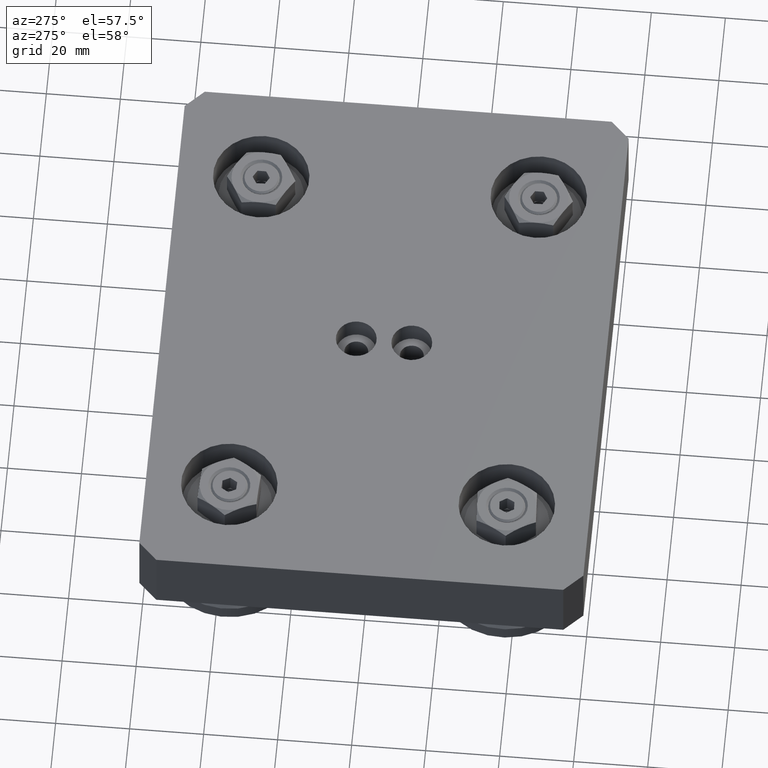
[diagram: clean part render]
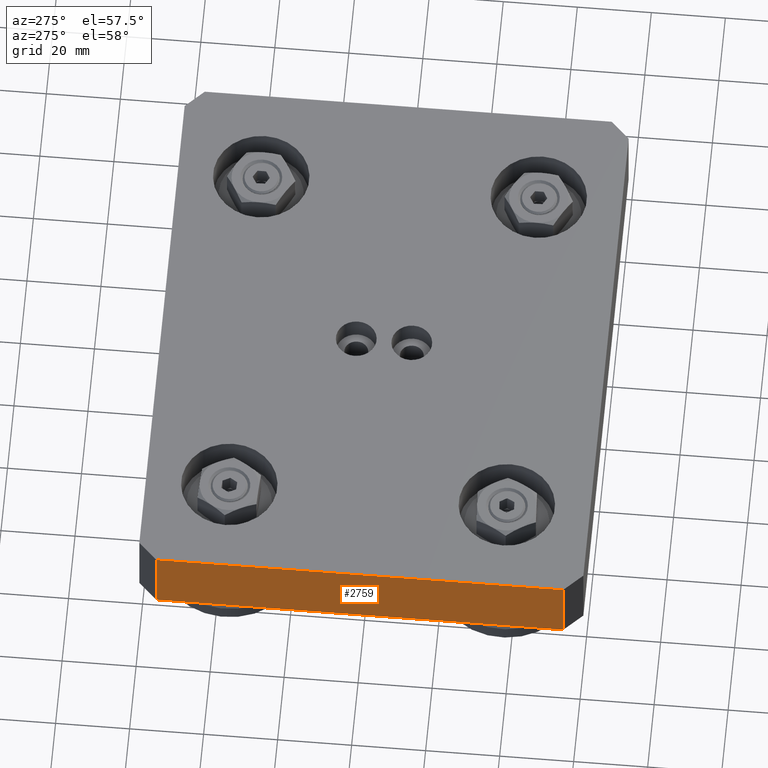
[diagram: same view with one face highlighted and labeled with its STEP entity id]
A machine part, auxiliary view. The second image highlights one B-rep face of the part: STEP entity #2759.
In plain terms, the highlighted planar face has unit normal (-1, 0, 0).
Its self-contained STEP definition (entity closure, byte-faithful):
#420=FACE_OUTER_BOUND('',#601,.T.);
#601=EDGE_LOOP('',(#1884,#1885,#1886,#1887));
#824=LINE('',#4438,#1037);
#825=LINE('',#4441,#1038);
#826=LINE('',#4443,#1039);
#827=LINE('',#4444,#1040);
#1037=VECTOR('',#3508,10.);
#1038=VECTOR('',#3511,10.);
#1039=VECTOR('',#3512,10.);
#1040=VECTOR('',#3513,10.);
#1247=VERTEX_POINT('',#4431);
#1250=VERTEX_POINT('',#4436);
#1251=VERTEX_POINT('',#4440);
#1252=VERTEX_POINT('',#4442);
#1494=EDGE_CURVE('',#1250,#1247,#824,.T.);
#1495=EDGE_CURVE('',#1251,#1250,#825,.T.);
#1496=EDGE_CURVE('',#1252,#1251,#826,.T.);
#1497=EDGE_CURVE('',#1252,#1247,#827,.T.);
#1884=ORIENTED_EDGE('',*,*,#1494,.F.);
#1885=ORIENTED_EDGE('',*,*,#1495,.F.);
#1886=ORIENTED_EDGE('',*,*,#1496,.F.);
#1887=ORIENTED_EDGE('',*,*,#1497,.T.);
#2659=PLANE('',#3144);
#2759=ADVANCED_FACE('',(#420),#2659,.T.);
#3144=AXIS2_PLACEMENT_3D('',#4439,#3509,#3510);
#3508=DIRECTION('',(0.,0.,1.));
#3509=DIRECTION('center_axis',(-1.,0.,0.));
#3510=DIRECTION('ref_axis',(0.,0.,1.));
#3511=DIRECTION('',(0.,1.,0.));
#3512=DIRECTION('',(0.,0.,-1.));
#3513=DIRECTION('',(0.,1.,0.));
#4431=CARTESIAN_POINT('',(-75.,55.,20.));
#4436=CARTESIAN_POINT('',(-75.,55.,0.));
#4438=CARTESIAN_POINT('',(-75.,55.,0.));
#4439=CARTESIAN_POINT('Origin',(-75.,-60.,0.));
#4440=CARTESIAN_POINT('',(-75.,-55.,0.));
#4441=CARTESIAN_POINT('',(-75.,-60.,0.));
#4442=CARTESIAN_POINT('',(-75.,-55.,20.));
#4443=CARTESIAN_POINT('',(-75.,-55.,0.));
#4444=CARTESIAN_POINT('',(-75.,-60.,20.));